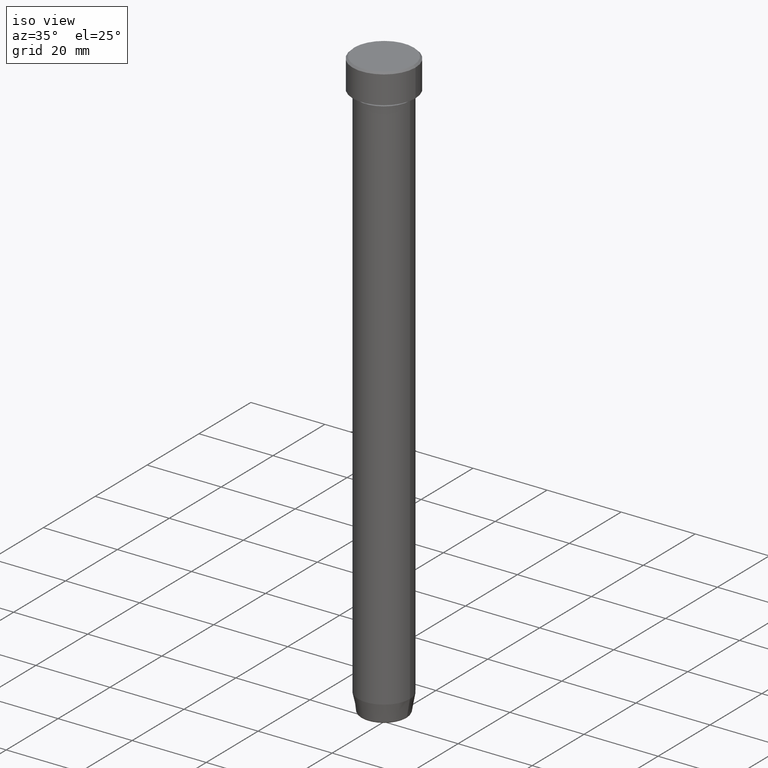
[diagram: clean part render]
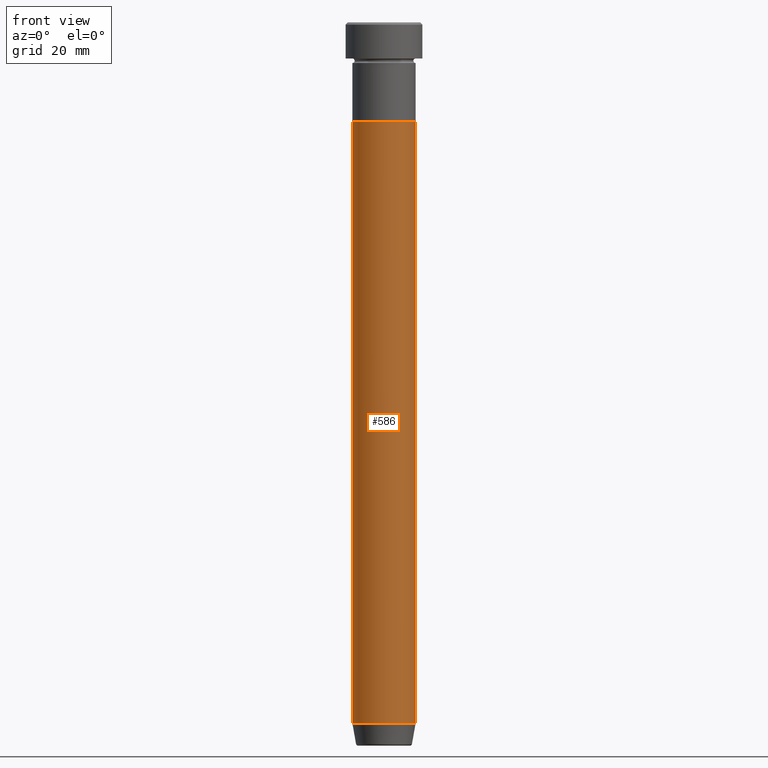
[diagram: tour spotlight — one face highlighted and labeled with its STEP entity id]
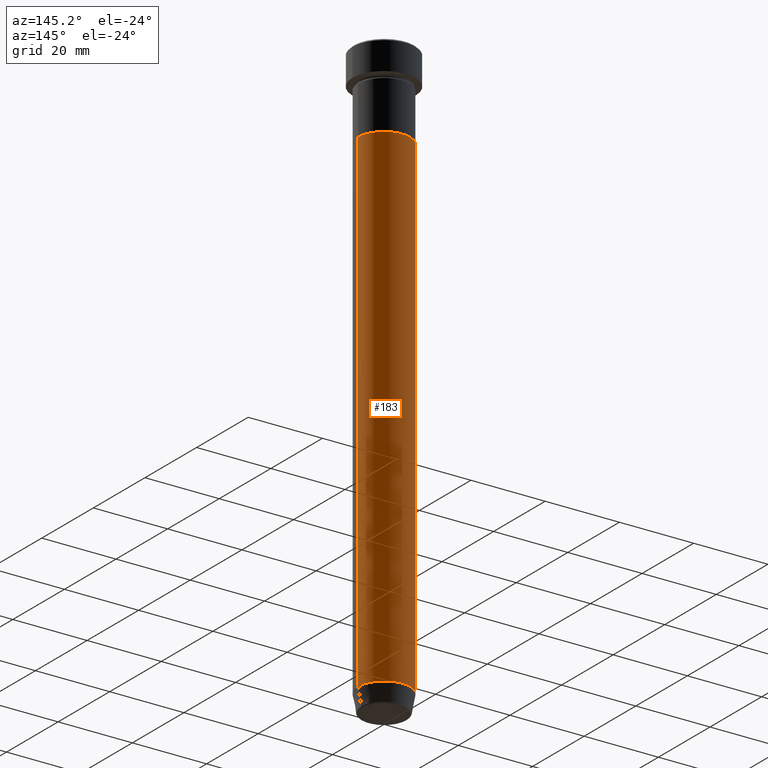
[diagram: tour spotlight — one face highlighted and labeled with its STEP entity id]
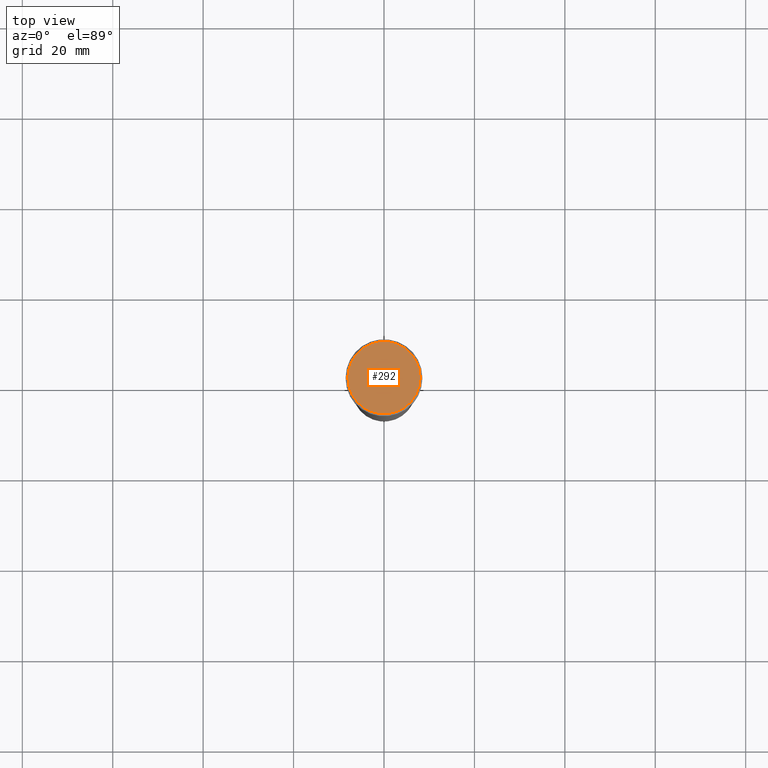
[diagram: tour spotlight — one face highlighted and labeled with its STEP entity id]
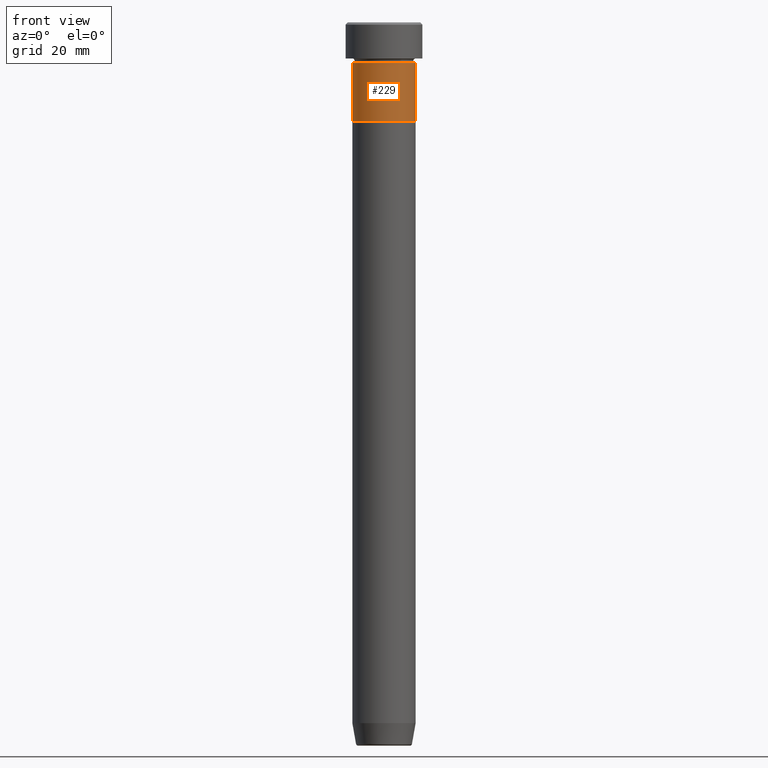
[diagram: tour spotlight — one face highlighted and labeled with its STEP entity id]
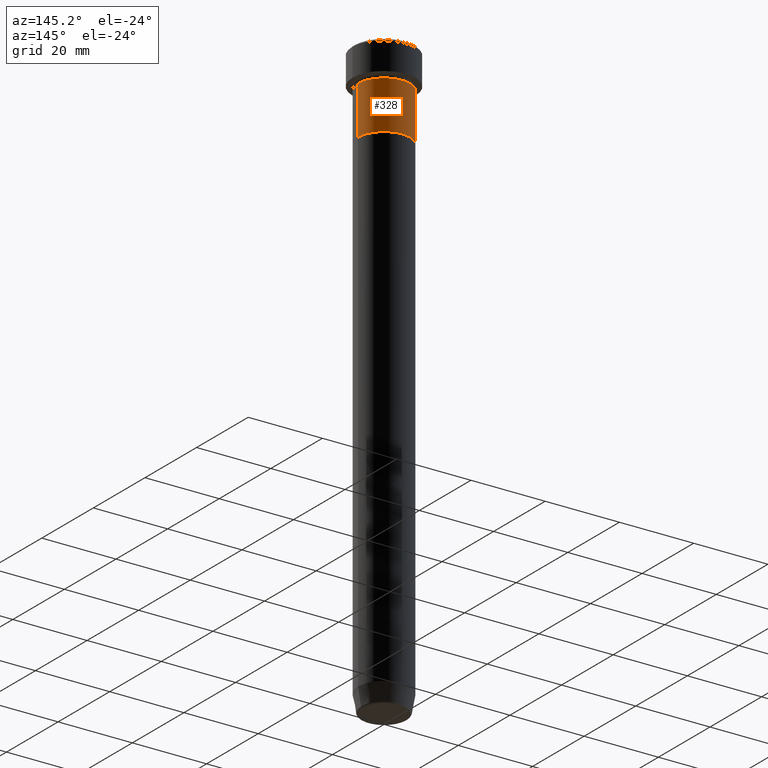
[diagram: tour spotlight — one face highlighted and labeled with its STEP entity id]
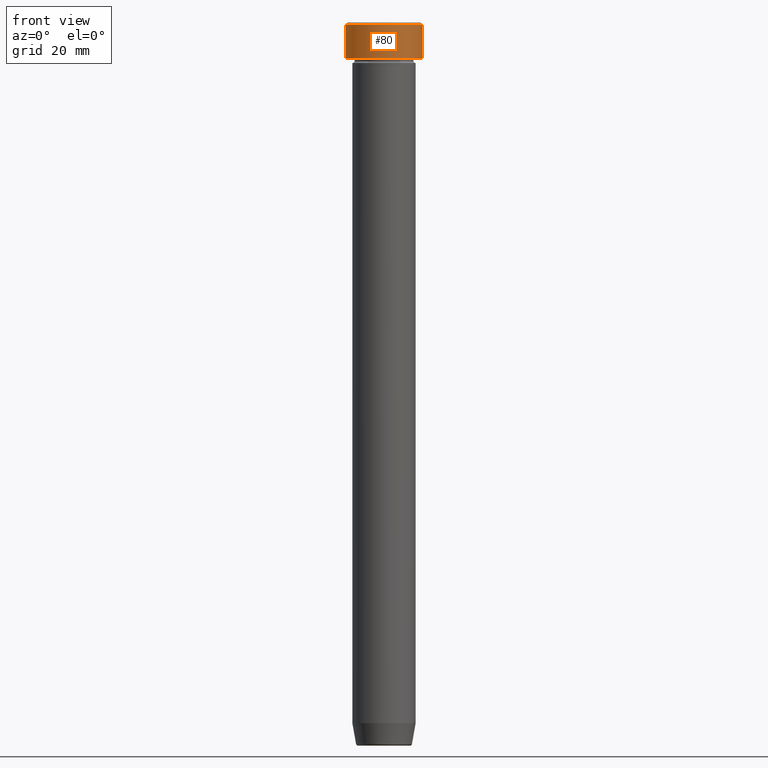
[diagram: tour spotlight — one face highlighted and labeled with its STEP entity id]
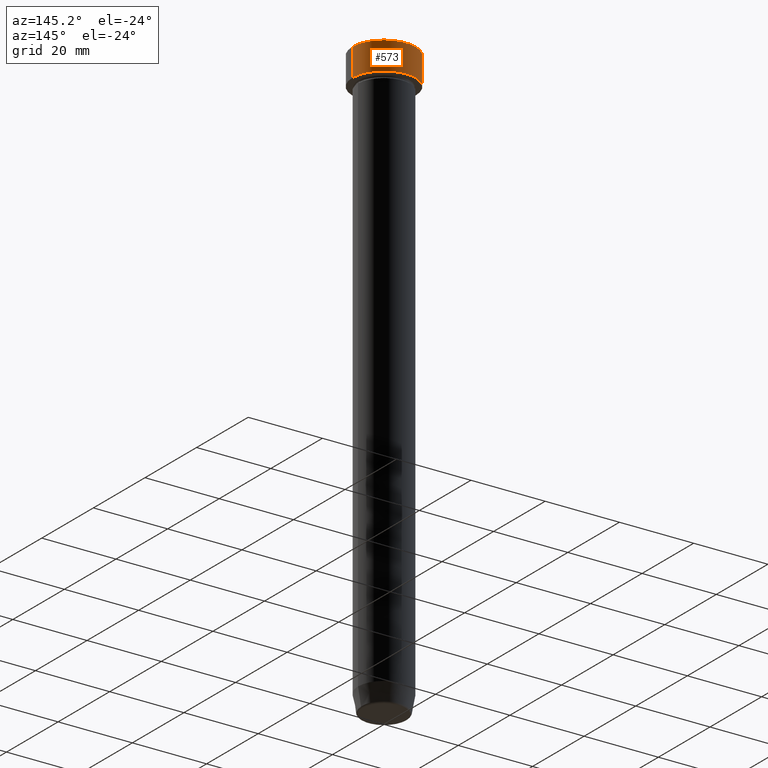
[diagram: tour spotlight — one face highlighted and labeled with its STEP entity id]
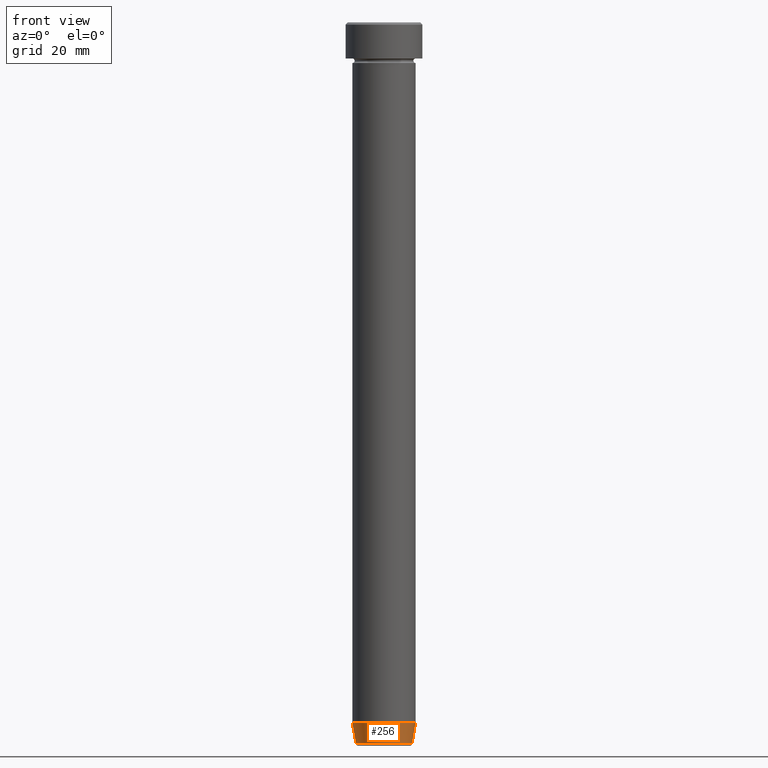
[diagram: tour spotlight — one face highlighted and labeled with its STEP entity id]
A machine part: a face-by-face anatomy tour. The part has 21 B-rep faces; the first image is the clean iso view, then the 8 largest visible faces are spotlighted one at a time (largest first), each with its STEP entity span.

Face 1 — front view, entity #586. In plain terms, the highlighted cylindrical surface (edge-blend (fillet) strip) has radius 7 mm, axis along (-0, -0, 1).
Definition (entity closure, byte-faithful):
#15 = ORIENTED_EDGE ( 'NONE', *, *, #403, .F. ) ;
#17 = DIRECTION ( 'NONE',  ( 1.000000000000000000, 0.000000000000000000, 0.000000000000000000 ) ) ;
#26 = CARTESIAN_POINT ( 'NONE',  ( 0.000000000000000000, 0.000000000000000000, 0.000000000000000000 ) ) ;
#45 = DIRECTION ( 'NONE',  ( 1.000000000000000000, 0.000000000000000000, 0.000000000000000000 ) ) ;
#78 = ORIENTED_EDGE ( 'NONE', *, *, #139, .F. ) ;
#116 = VERTEX_POINT ( 'NONE', #325 ) ;
#118 = ORIENTED_EDGE ( 'NONE', *, *, #542, .T. ) ;
#125 = EDGE_LOOP ( 'NONE', ( #78, #380, #118, #15 ) ) ;
#139 = EDGE_CURVE ( 'NONE', #402, #264, #231, .T. ) ;
#142 = DIRECTION ( 'NONE',  ( -0.000000000000000000, -0.000000000000000000, 1.000000000000000000 ) ) ;
#153 = FACE_OUTER_BOUND ( 'NONE', #125, .T. ) ;
#178 = AXIS2_PLACEMENT_3D ( 'NONE', #26, #350, #443 ) ;
#181 = CARTESIAN_POINT ( 'NONE',  ( 0.000000000000000000, 0.000000000000000000, -22.00000000000000000 ) ) ;
#211 = EDGE_CURVE ( 'NONE', #402, #116, #502, .T. ) ;
#226 = CARTESIAN_POINT ( 'NONE',  ( -6.999999999999999112, 8.572527594031472204E-16, -155.0000000000000000 ) ) ;
#231 = LINE ( 'NONE', #371, #570 ) ;
#235 = VECTOR ( 'NONE', #557, 1000.000000000000000 ) ;
#264 = VERTEX_POINT ( 'NONE', #430 ) ;
#272 = DIRECTION ( 'NONE',  ( -0.000000000000000000, -0.000000000000000000, 1.000000000000000000 ) ) ;
#274 = AXIS2_PLACEMENT_3D ( 'NONE', #181, #272, #45 ) ;
#281 = CARTESIAN_POINT ( 'NONE',  ( 6.999999999999999112, 0.000000000000000000, -22.00000000000000000 ) ) ;
#293 = CARTESIAN_POINT ( 'NONE',  ( 0.000000000000000000, 0.000000000000000000, -155.0000000000000000 ) ) ;
#299 = AXIS2_PLACEMENT_3D ( 'NONE', #293, #515, #17 ) ;
#325 = CARTESIAN_POINT ( 'NONE',  ( 6.999999999999999112, 0.000000000000000000, -155.0000000000000000 ) ) ;
#337 = CIRCLE ( 'NONE', #274, 6.999999999999999112 ) ;
#350 = DIRECTION ( 'NONE',  ( -0.000000000000000000, -0.000000000000000000, 1.000000000000000000 ) ) ;
#371 = CARTESIAN_POINT ( 'NONE',  ( -6.999999999999999112, 8.572527594031472204E-16, 0.000000000000000000 ) ) ;
#380 = ORIENTED_EDGE ( 'NONE', *, *, #211, .T. ) ;
#394 = CYLINDRICAL_SURFACE ( 'NONE', #178, 6.999999999999999112 ) ;
#402 = VERTEX_POINT ( 'NONE', #226 ) ;
#403 = EDGE_CURVE ( 'NONE', #264, #535, #337, .T. ) ;
#429 = LINE ( 'NONE', #574, #235 ) ;
#430 = CARTESIAN_POINT ( 'NONE',  ( -6.999999999999999112, 8.572527594031472204E-16, -22.00000000000000000 ) ) ;
#443 = DIRECTION ( 'NONE',  ( 1.000000000000000000, 0.000000000000000000, 0.000000000000000000 ) ) ;
#502 = CIRCLE ( 'NONE', #299, 6.999999999999999112 ) ;
#515 = DIRECTION ( 'NONE',  ( -0.000000000000000000, -0.000000000000000000, 1.000000000000000000 ) ) ;
#535 = VERTEX_POINT ( 'NONE', #281 ) ;
#542 = EDGE_CURVE ( 'NONE', #116, #535, #429, .T. ) ;
#557 = DIRECTION ( 'NONE',  ( -0.000000000000000000, -0.000000000000000000, 1.000000000000000000 ) ) ;
#570 = VECTOR ( 'NONE', #142, 1000.000000000000000 ) ;
#574 = CARTESIAN_POINT ( 'NONE',  ( 6.999999999999999112, 0.000000000000000000, 0.000000000000000000 ) ) ;
#586 = ADVANCED_FACE ( 'NONE', ( #153 ), #394, .T. ) ;

Face 2 — auxiliary view, entity #183. In plain terms, the highlighted cylindrical surface (edge-blend (fillet) strip) has radius 7 mm, axis along (-0, -0, 1).
Definition (entity closure, byte-faithful):
#32 = ORIENTED_EDGE ( 'NONE', *, *, #139, .T. ) ;
#47 = EDGE_CURVE ( 'NONE', #116, #402, #597, .T. ) ;
#79 = DIRECTION ( 'NONE',  ( 1.000000000000000000, 0.000000000000000000, 0.000000000000000000 ) ) ;
#116 = VERTEX_POINT ( 'NONE', #325 ) ;
#139 = EDGE_CURVE ( 'NONE', #402, #264, #231, .T. ) ;
#142 = DIRECTION ( 'NONE',  ( -0.000000000000000000, -0.000000000000000000, 1.000000000000000000 ) ) ;
#154 = FACE_OUTER_BOUND ( 'NONE', #592, .T. ) ;
#160 = DIRECTION ( 'NONE',  ( -0.000000000000000000, -0.000000000000000000, 1.000000000000000000 ) ) ;
#183 = ADVANCED_FACE ( 'NONE', ( #154 ), #529, .T. ) ;
#194 = ORIENTED_EDGE ( 'NONE', *, *, #542, .F. ) ;
#226 = CARTESIAN_POINT ( 'NONE',  ( -6.999999999999999112, 8.572527594031472204E-16, -155.0000000000000000 ) ) ;
#231 = LINE ( 'NONE', #371, #570 ) ;
#235 = VECTOR ( 'NONE', #557, 1000.000000000000000 ) ;
#264 = VERTEX_POINT ( 'NONE', #430 ) ;
#281 = CARTESIAN_POINT ( 'NONE',  ( 6.999999999999999112, 0.000000000000000000, -22.00000000000000000 ) ) ;
#310 = CARTESIAN_POINT ( 'NONE',  ( 0.000000000000000000, 0.000000000000000000, -22.00000000000000000 ) ) ;
#317 = AXIS2_PLACEMENT_3D ( 'NONE', #504, #362, #416 ) ;
#325 = CARTESIAN_POINT ( 'NONE',  ( 6.999999999999999112, 0.000000000000000000, -155.0000000000000000 ) ) ;
#333 = DIRECTION ( 'NONE',  ( -0.000000000000000000, -0.000000000000000000, 1.000000000000000000 ) ) ;
#349 = ORIENTED_EDGE ( 'NONE', *, *, #47, .T. ) ;
#351 = ORIENTED_EDGE ( 'NONE', *, *, #370, .F. ) ;
#362 = DIRECTION ( 'NONE',  ( -0.000000000000000000, -0.000000000000000000, 1.000000000000000000 ) ) ;
#370 = EDGE_CURVE ( 'NONE', #535, #264, #532, .T. ) ;
#371 = CARTESIAN_POINT ( 'NONE',  ( -6.999999999999999112, 8.572527594031472204E-16, 0.000000000000000000 ) ) ;
#383 = DIRECTION ( 'NONE',  ( 1.000000000000000000, 0.000000000000000000, 0.000000000000000000 ) ) ;
#402 = VERTEX_POINT ( 'NONE', #226 ) ;
#416 = DIRECTION ( 'NONE',  ( 1.000000000000000000, 0.000000000000000000, 0.000000000000000000 ) ) ;
#429 = LINE ( 'NONE', #574, #235 ) ;
#430 = CARTESIAN_POINT ( 'NONE',  ( -6.999999999999999112, 8.572527594031472204E-16, -22.00000000000000000 ) ) ;
#467 = AXIS2_PLACEMENT_3D ( 'NONE', #310, #160, #79 ) ;
#504 = CARTESIAN_POINT ( 'NONE',  ( 0.000000000000000000, 0.000000000000000000, -155.0000000000000000 ) ) ;
#529 = CYLINDRICAL_SURFACE ( 'NONE', #534, 6.999999999999999112 ) ;
#532 = CIRCLE ( 'NONE', #467, 6.999999999999999112 ) ;
#534 = AXIS2_PLACEMENT_3D ( 'NONE', #571, #333, #383 ) ;
#535 = VERTEX_POINT ( 'NONE', #281 ) ;
#542 = EDGE_CURVE ( 'NONE', #116, #535, #429, .T. ) ;
#557 = DIRECTION ( 'NONE',  ( -0.000000000000000000, -0.000000000000000000, 1.000000000000000000 ) ) ;
#570 = VECTOR ( 'NONE', #142, 1000.000000000000000 ) ;
#571 = CARTESIAN_POINT ( 'NONE',  ( 0.000000000000000000, 0.000000000000000000, 0.000000000000000000 ) ) ;
#574 = CARTESIAN_POINT ( 'NONE',  ( 6.999999999999999112, 0.000000000000000000, 0.000000000000000000 ) ) ;
#592 = EDGE_LOOP ( 'NONE', ( #349, #32, #351, #194 ) ) ;
#597 = CIRCLE ( 'NONE', #317, 6.999999999999999112 ) ;

Face 3 — top view, entity #292. In plain terms, the highlighted planar face has unit normal (0, -0, 1).
Definition (entity closure, byte-faithful):
#52 = VERTEX_POINT ( 'NONE', #94 ) ;
#56 = PLANE ( 'NONE',  #170 ) ;
#57 = ORIENTED_EDGE ( 'NONE', *, *, #217, .T. ) ;
#94 = CARTESIAN_POINT ( 'NONE',  ( 8.000000000000000000, 1.010333609296566550E-15, 0.000000000000000000 ) ) ;
#146 = EDGE_CURVE ( 'NONE', #423, #52, #406, .T. ) ;
#170 = AXIS2_PLACEMENT_3D ( 'NONE', #193, #290, #465 ) ;
#193 = CARTESIAN_POINT ( 'NONE',  ( 0.000000000000000000, 0.000000000000000000, 0.000000000000000000 ) ) ;
#196 = FACE_OUTER_BOUND ( 'NONE', #541, .T. ) ;
#217 = EDGE_CURVE ( 'NONE', #52, #423, #494, .T. ) ;
#290 = DIRECTION ( 'NONE',  ( 0.000000000000000000, -0.000000000000000000, 1.000000000000000000 ) ) ;
#292 = ADVANCED_FACE ( 'NONE', ( #196 ), #56, .T. ) ;
#309 = AXIS2_PLACEMENT_3D ( 'NONE', #341, #575, #517 ) ;
#315 = DIRECTION ( 'NONE',  ( 1.000000000000000000, 0.000000000000000000, 0.000000000000000000 ) ) ;
#341 = CARTESIAN_POINT ( 'NONE',  ( 0.000000000000000000, 0.000000000000000000, 0.000000000000000000 ) ) ;
#384 = AXIS2_PLACEMENT_3D ( 'NONE', #462, #420, #315 ) ;
#406 = CIRCLE ( 'NONE', #384, 8.000000000000000000 ) ;
#420 = DIRECTION ( 'NONE',  ( -0.000000000000000000, -0.000000000000000000, 1.000000000000000000 ) ) ;
#423 = VERTEX_POINT ( 'NONE', #593 ) ;
#431 = ORIENTED_EDGE ( 'NONE', *, *, #146, .T. ) ;
#462 = CARTESIAN_POINT ( 'NONE',  ( 0.000000000000000000, 0.000000000000000000, 0.000000000000000000 ) ) ;
#465 = DIRECTION ( 'NONE',  ( 1.000000000000000000, 0.000000000000000000, 0.000000000000000000 ) ) ;
#494 = CIRCLE ( 'NONE', #309, 8.000000000000000000 ) ;
#517 = DIRECTION ( 'NONE',  ( 1.000000000000000000, 0.000000000000000000, 0.000000000000000000 ) ) ;
#541 = EDGE_LOOP ( 'NONE', ( #431, #57 ) ) ;
#575 = DIRECTION ( 'NONE',  ( -0.000000000000000000, -0.000000000000000000, 1.000000000000000000 ) ) ;
#593 = CARTESIAN_POINT ( 'NONE',  ( -8.000000000000000000, 0.000000000000000000, 0.000000000000000000 ) ) ;

Face 4 — front view, entity #229. In plain terms, the highlighted cylindrical surface (edge-blend (fillet) strip) has radius 7 mm, axis along (-0, -0, 1).
Definition (entity closure, byte-faithful):
#5 = CARTESIAN_POINT ( 'NONE',  ( -6.999999999999999112, 8.572527594031472204E-16, -22.00000000000000000 ) ) ;
#28 = DIRECTION ( 'NONE',  ( 1.000000000000000000, 0.000000000000000000, 0.000000000000000000 ) ) ;
#36 = EDGE_LOOP ( 'NONE', ( #524, #150, #487, #105 ) ) ;
#38 = EDGE_CURVE ( 'NONE', #538, #385, #267, .T. ) ;
#40 = CARTESIAN_POINT ( 'NONE',  ( -6.999999999999999112, 8.572527594031472204E-16, 0.000000000000000000 ) ) ;
#41 = CIRCLE ( 'NONE', #433, 6.999999999999999112 ) ;
#59 = EDGE_CURVE ( 'NONE', #584, #202, #135, .T. ) ;
#62 = DIRECTION ( 'NONE',  ( -0.000000000000000000, -0.000000000000000000, 1.000000000000000000 ) ) ;
#64 = AXIS2_PLACEMENT_3D ( 'NONE', #523, #62, #434 ) ;
#105 = ORIENTED_EDGE ( 'NONE', *, *, #363, .F. ) ;
#106 = CYLINDRICAL_SURFACE ( 'NONE', #64, 6.999999999999999112 ) ;
#124 = DIRECTION ( 'NONE',  ( -0.000000000000000000, -0.000000000000000000, 1.000000000000000000 ) ) ;
#135 = LINE ( 'NONE', #329, #164 ) ;
#150 = ORIENTED_EDGE ( 'NONE', *, *, #320, .T. ) ;
#164 = VECTOR ( 'NONE', #228, 1000.000000000000000 ) ;
#166 = CARTESIAN_POINT ( 'NONE',  ( 0.000000000000000000, 0.000000000000000000, -9.000000000000001776 ) ) ;
#172 = DIRECTION ( 'NONE',  ( 1.000000000000000000, 0.000000000000000000, 0.000000000000000000 ) ) ;
#188 = VECTOR ( 'NONE', #323, 1000.000000000000000 ) ;
#202 = VERTEX_POINT ( 'NONE', #203 ) ;
#203 = CARTESIAN_POINT ( 'NONE',  ( 7.000000000000000000, 0.000000000000000000, -9.000000000000001776 ) ) ;
#228 = DIRECTION ( 'NONE',  ( -0.000000000000000000, -0.000000000000000000, 1.000000000000000000 ) ) ;
#229 = ADVANCED_FACE ( 'NONE', ( #526 ), #106, .T. ) ;
#267 = LINE ( 'NONE', #40, #188 ) ;
#320 = EDGE_CURVE ( 'NONE', #538, #584, #41, .T. ) ;
#323 = DIRECTION ( 'NONE',  ( -0.000000000000000000, -0.000000000000000000, 1.000000000000000000 ) ) ;
#329 = CARTESIAN_POINT ( 'NONE',  ( 6.999999999999999112, 0.000000000000000000, 0.000000000000000000 ) ) ;
#338 = CARTESIAN_POINT ( 'NONE',  ( 0.000000000000000000, 0.000000000000000000, -22.00000000000000000 ) ) ;
#363 = EDGE_CURVE ( 'NONE', #385, #202, #364, .T. ) ;
#364 = CIRCLE ( 'NONE', #594, 7.000000000000000000 ) ;
#385 = VERTEX_POINT ( 'NONE', #546 ) ;
#433 = AXIS2_PLACEMENT_3D ( 'NONE', #338, #474, #28 ) ;
#434 = DIRECTION ( 'NONE',  ( 1.000000000000000000, 0.000000000000000000, 0.000000000000000000 ) ) ;
#474 = DIRECTION ( 'NONE',  ( -0.000000000000000000, -0.000000000000000000, 1.000000000000000000 ) ) ;
#487 = ORIENTED_EDGE ( 'NONE', *, *, #59, .T. ) ;
#523 = CARTESIAN_POINT ( 'NONE',  ( 0.000000000000000000, 0.000000000000000000, 0.000000000000000000 ) ) ;
#524 = ORIENTED_EDGE ( 'NONE', *, *, #38, .F. ) ;
#526 = FACE_OUTER_BOUND ( 'NONE', #36, .T. ) ;
#538 = VERTEX_POINT ( 'NONE', #5 ) ;
#546 = CARTESIAN_POINT ( 'NONE',  ( -7.000000000000000888, 8.572527594031474176E-16, -9.000000000000001776 ) ) ;
#569 = CARTESIAN_POINT ( 'NONE',  ( 6.999999999999999112, 0.000000000000000000, -22.00000000000000000 ) ) ;
#584 = VERTEX_POINT ( 'NONE', #569 ) ;
#594 = AXIS2_PLACEMENT_3D ( 'NONE', #166, #124, #172 ) ;

Face 5 — auxiliary view, entity #328. In plain terms, the highlighted cylindrical surface (edge-blend (fillet) strip) has radius 7 mm, axis along (-0, -0, 1).
Definition (entity closure, byte-faithful):
#5 = CARTESIAN_POINT ( 'NONE',  ( -6.999999999999999112, 8.572527594031472204E-16, -22.00000000000000000 ) ) ;
#38 = EDGE_CURVE ( 'NONE', #538, #385, #267, .T. ) ;
#40 = CARTESIAN_POINT ( 'NONE',  ( -6.999999999999999112, 8.572527594031472204E-16, 0.000000000000000000 ) ) ;
#59 = EDGE_CURVE ( 'NONE', #584, #202, #135, .T. ) ;
#73 = DIRECTION ( 'NONE',  ( 1.000000000000000000, 0.000000000000000000, 0.000000000000000000 ) ) ;
#87 = DIRECTION ( 'NONE',  ( -0.000000000000000000, -0.000000000000000000, 1.000000000000000000 ) ) ;
#128 = CARTESIAN_POINT ( 'NONE',  ( 0.000000000000000000, 0.000000000000000000, -22.00000000000000000 ) ) ;
#135 = LINE ( 'NONE', #329, #164 ) ;
#141 = CIRCLE ( 'NONE', #520, 6.999999999999999112 ) ;
#164 = VECTOR ( 'NONE', #228, 1000.000000000000000 ) ;
#188 = VECTOR ( 'NONE', #323, 1000.000000000000000 ) ;
#202 = VERTEX_POINT ( 'NONE', #203 ) ;
#203 = CARTESIAN_POINT ( 'NONE',  ( 7.000000000000000000, 0.000000000000000000, -9.000000000000001776 ) ) ;
#228 = DIRECTION ( 'NONE',  ( -0.000000000000000000, -0.000000000000000000, 1.000000000000000000 ) ) ;
#267 = LINE ( 'NONE', #40, #188 ) ;
#304 = DIRECTION ( 'NONE',  ( -0.000000000000000000, -0.000000000000000000, 1.000000000000000000 ) ) ;
#305 = ORIENTED_EDGE ( 'NONE', *, *, #419, .T. ) ;
#312 = CARTESIAN_POINT ( 'NONE',  ( 0.000000000000000000, 0.000000000000000000, 0.000000000000000000 ) ) ;
#323 = DIRECTION ( 'NONE',  ( -0.000000000000000000, -0.000000000000000000, 1.000000000000000000 ) ) ;
#328 = ADVANCED_FACE ( 'NONE', ( #400 ), #486, .T. ) ;
#329 = CARTESIAN_POINT ( 'NONE',  ( 6.999999999999999112, 0.000000000000000000, 0.000000000000000000 ) ) ;
#345 = ORIENTED_EDGE ( 'NONE', *, *, #59, .F. ) ;
#347 = CARTESIAN_POINT ( 'NONE',  ( 0.000000000000000000, 0.000000000000000000, -9.000000000000001776 ) ) ;
#358 = EDGE_LOOP ( 'NONE', ( #305, #441, #389, #345 ) ) ;
#368 = DIRECTION ( 'NONE',  ( 1.000000000000000000, 0.000000000000000000, 0.000000000000000000 ) ) ;
#372 = AXIS2_PLACEMENT_3D ( 'NONE', #347, #533, #447 ) ;
#379 = EDGE_CURVE ( 'NONE', #202, #385, #491, .T. ) ;
#385 = VERTEX_POINT ( 'NONE', #546 ) ;
#389 = ORIENTED_EDGE ( 'NONE', *, *, #379, .F. ) ;
#400 = FACE_OUTER_BOUND ( 'NONE', #358, .T. ) ;
#419 = EDGE_CURVE ( 'NONE', #584, #538, #141, .T. ) ;
#441 = ORIENTED_EDGE ( 'NONE', *, *, #38, .T. ) ;
#447 = DIRECTION ( 'NONE',  ( 1.000000000000000000, 0.000000000000000000, 0.000000000000000000 ) ) ;
#486 = CYLINDRICAL_SURFACE ( 'NONE', #567, 6.999999999999999112 ) ;
#491 = CIRCLE ( 'NONE', #372, 7.000000000000000000 ) ;
#520 = AXIS2_PLACEMENT_3D ( 'NONE', #128, #87, #368 ) ;
#533 = DIRECTION ( 'NONE',  ( -0.000000000000000000, -0.000000000000000000, 1.000000000000000000 ) ) ;
#538 = VERTEX_POINT ( 'NONE', #5 ) ;
#546 = CARTESIAN_POINT ( 'NONE',  ( -7.000000000000000888, 8.572527594031474176E-16, -9.000000000000001776 ) ) ;
#567 = AXIS2_PLACEMENT_3D ( 'NONE', #312, #304, #73 ) ;
#569 = CARTESIAN_POINT ( 'NONE',  ( 6.999999999999999112, 0.000000000000000000, -22.00000000000000000 ) ) ;
#584 = VERTEX_POINT ( 'NONE', #569 ) ;

Face 6 — front view, entity #80. In plain terms, the highlighted cylindrical surface (partial cylindrical patch) has radius 8.5 mm, axis along (-0, -0, 1).
Definition (entity closure, byte-faithful):
#2 = CARTESIAN_POINT ( 'NONE',  ( 0.000000000000000000, 0.000000000000000000, -8.000000000000000000 ) ) ;
#3 = VECTOR ( 'NONE', #314, 1000.000000000000000 ) ;
#7 = ORIENTED_EDGE ( 'NONE', *, *, #411, .T. ) ;
#43 = AXIS2_PLACEMENT_3D ( 'NONE', #2, #221, #187 ) ;
#48 = LINE ( 'NONE', #550, #3 ) ;
#49 = DIRECTION ( 'NONE',  ( 1.000000000000000000, 0.000000000000000000, 0.000000000000000000 ) ) ;
#80 = ADVANCED_FACE ( 'NONE', ( #273 ), #319, .T. ) ;
#93 = CARTESIAN_POINT ( 'NONE',  ( -8.500000000000000000, 1.040949779275250140E-15, -8.000000000000000000 ) ) ;
#98 = CARTESIAN_POINT ( 'NONE',  ( -8.500000000000000000, 1.040949779275250140E-15, -0.4999999999999987232 ) ) ;
#134 = AXIS2_PLACEMENT_3D ( 'NONE', #137, #279, #49 ) ;
#137 = CARTESIAN_POINT ( 'NONE',  ( 0.000000000000000000, 0.000000000000000000, 0.000000000000000000 ) ) ;
#156 = EDGE_CURVE ( 'NONE', #450, #397, #287, .T. ) ;
#167 = ORIENTED_EDGE ( 'NONE', *, *, #507, .F. ) ;
#187 = DIRECTION ( 'NONE',  ( 1.000000000000000000, 0.000000000000000000, 0.000000000000000000 ) ) ;
#215 = VERTEX_POINT ( 'NONE', #246 ) ;
#219 = VERTEX_POINT ( 'NONE', #98 ) ;
#221 = DIRECTION ( 'NONE',  ( -0.000000000000000000, -0.000000000000000000, 1.000000000000000000 ) ) ;
#246 = CARTESIAN_POINT ( 'NONE',  ( 8.500000000000000000, 0.000000000000000000, -0.4999999999999987232 ) ) ;
#265 = AXIS2_PLACEMENT_3D ( 'NONE', #508, #512, #544 ) ;
#273 = FACE_OUTER_BOUND ( 'NONE', #437, .T. ) ;
#275 = CARTESIAN_POINT ( 'NONE',  ( -8.500000000000000000, 1.040949779275250140E-15, 0.000000000000000000 ) ) ;
#279 = DIRECTION ( 'NONE',  ( -0.000000000000000000, -0.000000000000000000, 1.000000000000000000 ) ) ;
#287 = CIRCLE ( 'NONE', #43, 8.500000000000000000 ) ;
#313 = ORIENTED_EDGE ( 'NONE', *, *, #156, .T. ) ;
#314 = DIRECTION ( 'NONE',  ( -0.000000000000000000, -0.000000000000000000, 1.000000000000000000 ) ) ;
#319 = CYLINDRICAL_SURFACE ( 'NONE', #134, 8.500000000000000000 ) ;
#322 = CARTESIAN_POINT ( 'NONE',  ( 8.500000000000000000, 0.000000000000000000, -8.000000000000000000 ) ) ;
#326 = CIRCLE ( 'NONE', #265, 8.500000000000000000 ) ;
#397 = VERTEX_POINT ( 'NONE', #322 ) ;
#411 = EDGE_CURVE ( 'NONE', #215, #219, #326, .T. ) ;
#427 = ORIENTED_EDGE ( 'NONE', *, *, #468, .T. ) ;
#437 = EDGE_LOOP ( 'NONE', ( #167, #313, #427, #7 ) ) ;
#450 = VERTEX_POINT ( 'NONE', #93 ) ;
#455 = LINE ( 'NONE', #275, #490 ) ;
#468 = EDGE_CURVE ( 'NONE', #397, #215, #48, .T. ) ;
#490 = VECTOR ( 'NONE', #498, 1000.000000000000000 ) ;
#498 = DIRECTION ( 'NONE',  ( -0.000000000000000000, -0.000000000000000000, 1.000000000000000000 ) ) ;
#507 = EDGE_CURVE ( 'NONE', #450, #219, #455, .T. ) ;
#508 = CARTESIAN_POINT ( 'NONE',  ( 0.000000000000000000, 0.000000000000000000, -0.4999999999999987232 ) ) ;
#512 = DIRECTION ( 'NONE',  ( 0.000000000000000000, 0.000000000000000000, -1.000000000000000000 ) ) ;
#544 = DIRECTION ( 'NONE',  ( 1.000000000000000000, 0.000000000000000000, 0.000000000000000000 ) ) ;
#550 = CARTESIAN_POINT ( 'NONE',  ( 8.500000000000000000, 0.000000000000000000, 0.000000000000000000 ) ) ;

Face 7 — auxiliary view, entity #573. In plain terms, the highlighted cylindrical surface (partial cylindrical patch) has radius 8.5 mm, axis along (-0, -0, 1).
Definition (entity closure, byte-faithful):
#3 = VECTOR ( 'NONE', #314, 1000.000000000000000 ) ;
#12 = DIRECTION ( 'NONE',  ( -0.000000000000000000, -0.000000000000000000, 1.000000000000000000 ) ) ;
#33 = EDGE_CURVE ( 'NONE', #397, #450, #442, .T. ) ;
#48 = LINE ( 'NONE', #550, #3 ) ;
#88 = CARTESIAN_POINT ( 'NONE',  ( 0.000000000000000000, 0.000000000000000000, -8.000000000000000000 ) ) ;
#93 = CARTESIAN_POINT ( 'NONE',  ( -8.500000000000000000, 1.040949779275250140E-15, -8.000000000000000000 ) ) ;
#95 = CYLINDRICAL_SURFACE ( 'NONE', #395, 8.500000000000000000 ) ;
#98 = CARTESIAN_POINT ( 'NONE',  ( -8.500000000000000000, 1.040949779275250140E-15, -0.4999999999999987232 ) ) ;
#147 = EDGE_LOOP ( 'NONE', ( #165, #262, #377, #527 ) ) ;
#165 = ORIENTED_EDGE ( 'NONE', *, *, #33, .T. ) ;
#189 = CARTESIAN_POINT ( 'NONE',  ( 0.000000000000000000, 0.000000000000000000, -0.4999999999999987232 ) ) ;
#215 = VERTEX_POINT ( 'NONE', #246 ) ;
#219 = VERTEX_POINT ( 'NONE', #98 ) ;
#225 = CIRCLE ( 'NONE', #307, 8.500000000000000000 ) ;
#246 = CARTESIAN_POINT ( 'NONE',  ( 8.500000000000000000, 0.000000000000000000, -0.4999999999999987232 ) ) ;
#262 = ORIENTED_EDGE ( 'NONE', *, *, #507, .T. ) ;
#275 = CARTESIAN_POINT ( 'NONE',  ( -8.500000000000000000, 1.040949779275250140E-15, 0.000000000000000000 ) ) ;
#307 = AXIS2_PLACEMENT_3D ( 'NONE', #189, #375, #343 ) ;
#314 = DIRECTION ( 'NONE',  ( -0.000000000000000000, -0.000000000000000000, 1.000000000000000000 ) ) ;
#322 = CARTESIAN_POINT ( 'NONE',  ( 8.500000000000000000, 0.000000000000000000, -8.000000000000000000 ) ) ;
#343 = DIRECTION ( 'NONE',  ( 1.000000000000000000, 0.000000000000000000, 0.000000000000000000 ) ) ;
#375 = DIRECTION ( 'NONE',  ( 0.000000000000000000, 0.000000000000000000, -1.000000000000000000 ) ) ;
#377 = ORIENTED_EDGE ( 'NONE', *, *, #552, .T. ) ;
#395 = AXIS2_PLACEMENT_3D ( 'NONE', #470, #12, #464 ) ;
#397 = VERTEX_POINT ( 'NONE', #322 ) ;
#442 = CIRCLE ( 'NONE', #511, 8.500000000000000000 ) ;
#450 = VERTEX_POINT ( 'NONE', #93 ) ;
#452 = DIRECTION ( 'NONE',  ( 1.000000000000000000, 0.000000000000000000, 0.000000000000000000 ) ) ;
#455 = LINE ( 'NONE', #275, #490 ) ;
#464 = DIRECTION ( 'NONE',  ( 1.000000000000000000, 0.000000000000000000, 0.000000000000000000 ) ) ;
#468 = EDGE_CURVE ( 'NONE', #397, #215, #48, .T. ) ;
#470 = CARTESIAN_POINT ( 'NONE',  ( 0.000000000000000000, 0.000000000000000000, 0.000000000000000000 ) ) ;
#479 = FACE_OUTER_BOUND ( 'NONE', #147, .T. ) ;
#490 = VECTOR ( 'NONE', #498, 1000.000000000000000 ) ;
#498 = DIRECTION ( 'NONE',  ( -0.000000000000000000, -0.000000000000000000, 1.000000000000000000 ) ) ;
#507 = EDGE_CURVE ( 'NONE', #450, #219, #455, .T. ) ;
#511 = AXIS2_PLACEMENT_3D ( 'NONE', #88, #548, #452 ) ;
#527 = ORIENTED_EDGE ( 'NONE', *, *, #468, .F. ) ;
#548 = DIRECTION ( 'NONE',  ( -0.000000000000000000, -0.000000000000000000, 1.000000000000000000 ) ) ;
#550 = CARTESIAN_POINT ( 'NONE',  ( 8.500000000000000000, 0.000000000000000000, 0.000000000000000000 ) ) ;
#552 = EDGE_CURVE ( 'NONE', #219, #215, #225, .T. ) ;
#573 = ADVANCED_FACE ( 'NONE', ( #479 ), #95, .T. ) ;

Face 8 — front view, entity #256. In plain terms, the highlighted conical surface has half-angle 10 deg.
Definition (entity closure, byte-faithful):
#6 = DIRECTION ( 'NONE',  ( 0.1736481776669292765, 0.000000000000000000, 0.9848077530122082424 ) ) ;
#10 = CARTESIAN_POINT ( 'NONE',  ( 6.118365096457679009, 0.000000000000000000, -160.0000000000000000 ) ) ;
#17 = DIRECTION ( 'NONE',  ( 1.000000000000000000, 0.000000000000000000, 0.000000000000000000 ) ) ;
#30 = VERTEX_POINT ( 'NONE', #418 ) ;
#69 = EDGE_CURVE ( 'NONE', #249, #402, #233, .T. ) ;
#116 = VERTEX_POINT ( 'NONE', #325 ) ;
#174 = EDGE_CURVE ( 'NONE', #30, #116, #413, .T. ) ;
#182 = DIRECTION ( 'NONE',  ( -0.1736481776669292765, 2.126576849575758356E-17, 0.9848077530122082424 ) ) ;
#204 = EDGE_LOOP ( 'NONE', ( #401, #484, #477, #294 ) ) ;
#211 = EDGE_CURVE ( 'NONE', #402, #116, #502, .T. ) ;
#226 = CARTESIAN_POINT ( 'NONE',  ( -6.999999999999999112, 8.572527594031472204E-16, -155.0000000000000000 ) ) ;
#227 = VECTOR ( 'NONE', #182, 1000.000000000000000 ) ;
#233 = LINE ( 'NONE', #595, #227 ) ;
#236 = CARTESIAN_POINT ( 'NONE',  ( 0.000000000000000000, 0.000000000000000000, -159.5868240888334526 ) ) ;
#249 = VERTEX_POINT ( 'NONE', #388 ) ;
#251 = DIRECTION ( 'NONE',  ( -0.000000000000000000, -0.000000000000000000, 1.000000000000000000 ) ) ;
#256 = ADVANCED_FACE ( 'NONE', ( #295 ), #404, .T. ) ;
#258 = CIRCLE ( 'NONE', #547, 6.191219157375146054 ) ;
#263 = EDGE_CURVE ( 'NONE', #249, #30, #258, .T. ) ;
#282 = DIRECTION ( 'NONE',  ( 1.000000000000000000, 0.000000000000000000, 0.000000000000000000 ) ) ;
#286 = DIRECTION ( 'NONE',  ( -1.000000000000000000, 0.000000000000000000, 0.000000000000000000 ) ) ;
#293 = CARTESIAN_POINT ( 'NONE',  ( 0.000000000000000000, 0.000000000000000000, -155.0000000000000000 ) ) ;
#294 = ORIENTED_EDGE ( 'NONE', *, *, #211, .F. ) ;
#295 = FACE_OUTER_BOUND ( 'NONE', #204, .T. ) ;
#299 = AXIS2_PLACEMENT_3D ( 'NONE', #293, #515, #17 ) ;
#325 = CARTESIAN_POINT ( 'NONE',  ( 6.999999999999999112, 0.000000000000000000, -155.0000000000000000 ) ) ;
#356 = VECTOR ( 'NONE', #6, 1000.000000000000000 ) ;
#376 = DIRECTION ( 'NONE',  ( -0.000000000000000000, -0.000000000000000000, 1.000000000000000000 ) ) ;
#388 = CARTESIAN_POINT ( 'NONE',  ( -6.191219157375146942, 8.077292158965359378E-16, -159.5868240888334526 ) ) ;
#401 = ORIENTED_EDGE ( 'NONE', *, *, #69, .F. ) ;
#402 = VERTEX_POINT ( 'NONE', #226 ) ;
#404 = CONICAL_SURFACE ( 'NONE', #457, 6.118365096457679009, 0.1745329251994318653 ) ;
#413 = LINE ( 'NONE', #10, #356 ) ;
#418 = CARTESIAN_POINT ( 'NONE',  ( 6.191219157375146942, 0.000000000000000000, -159.5868240888334526 ) ) ;
#457 = AXIS2_PLACEMENT_3D ( 'NONE', #480, #251, #282 ) ;
#477 = ORIENTED_EDGE ( 'NONE', *, *, #174, .T. ) ;
#480 = CARTESIAN_POINT ( 'NONE',  ( 0.000000000000000000, 0.000000000000000000, -160.0000000000000000 ) ) ;
#484 = ORIENTED_EDGE ( 'NONE', *, *, #263, .T. ) ;
#502 = CIRCLE ( 'NONE', #299, 6.999999999999999112 ) ;
#515 = DIRECTION ( 'NONE',  ( -0.000000000000000000, -0.000000000000000000, 1.000000000000000000 ) ) ;
#547 = AXIS2_PLACEMENT_3D ( 'NONE', #236, #376, #286 ) ;
#595 = CARTESIAN_POINT ( 'NONE',  ( -6.118365096457679009, 7.492836231391783526E-16, -160.0000000000000000 ) ) ;